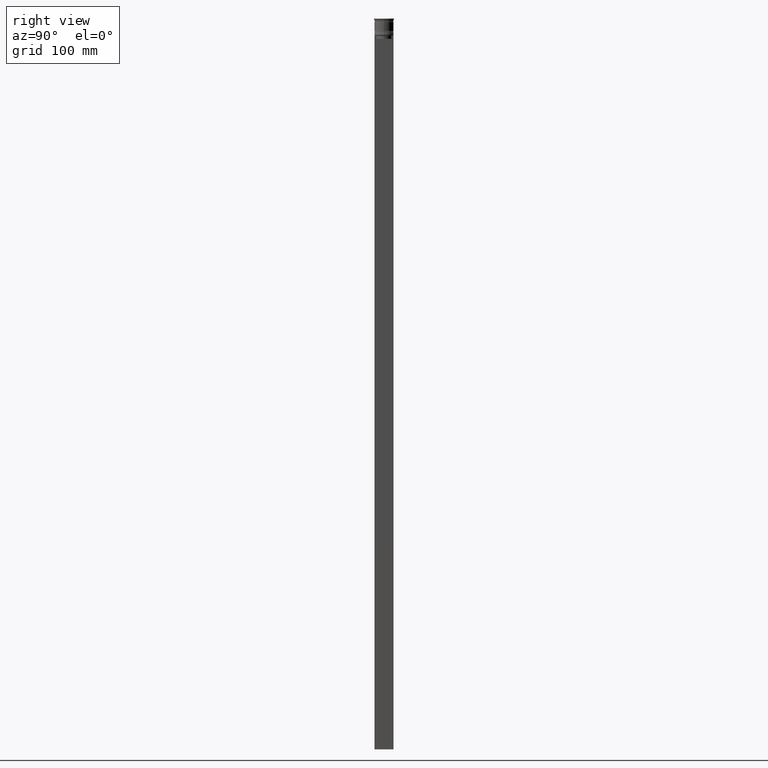
[diagram: clean part render]
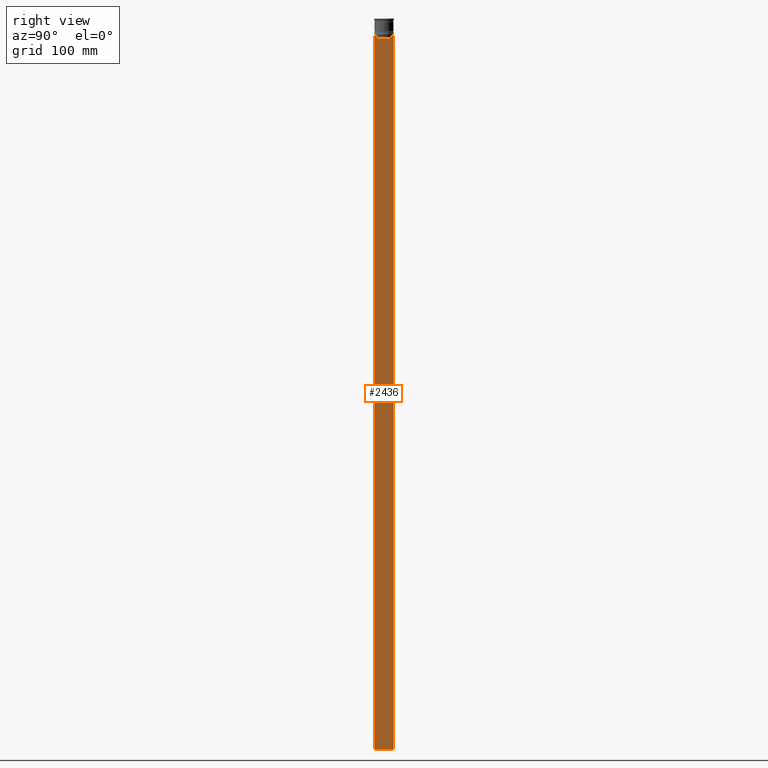
[diagram: same view with one face highlighted and labeled with its STEP entity id]
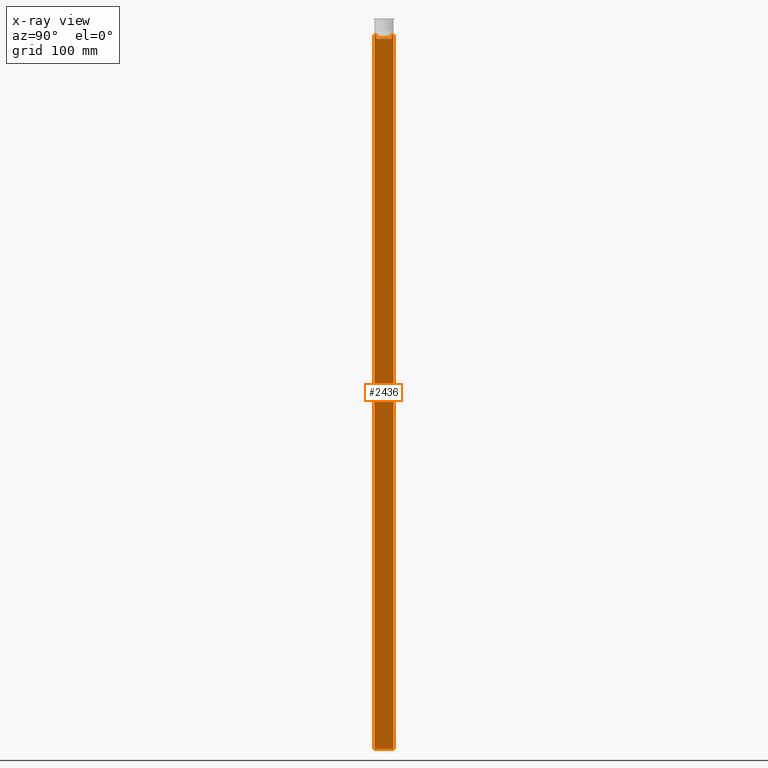
[diagram: x-ray of the same camera — body ghosted, the highlighted face saturated]
A machine part, right view. The second image highlights one B-rep face of the part: STEP entity #2436.
The next image is the same camera in x-ray: the body ghosted, the highlighted face saturated — about 0% of this face is hidden behind the body in this view.
In plain terms, the highlighted planar face has unit normal (-1, 0, 0).
Its self-contained STEP definition (entity closure, byte-faithful):
#29 = VERTEX_POINT ( 'NONE', #1658 ) ;
#39 = CARTESIAN_POINT ( 'NONE',  ( 0.5000000000000001110, -6.881860213634098500, -14.00000000000000178 ) ) ;
#73 = VERTEX_POINT ( 'NONE', #108 ) ;
#80 = DIRECTION ( 'NONE',  ( 0.000000000000000000, -1.000000000000000000, 0.000000000000000000 ) ) ;
#95 = EDGE_CURVE ( 'NONE', #1430, #1827, #286, .T. ) ;
#108 = CARTESIAN_POINT ( 'NONE',  ( 0.5000000000000001110, -6.380438856379708312, -17.00000000000000000 ) ) ;
#113 = EDGE_CURVE ( 'NONE', #1595, #1979, #2234, .T. ) ;
#142 = CARTESIAN_POINT ( 'NONE',  ( 0.5000000000000001110, -8.000000000000003553, 2.031219541881394530 ) ) ;
#143 = LINE ( 'NONE', #940, #396 ) ;
#148 = CARTESIAN_POINT ( 'NONE',  ( 0.5000000000000001110, 7.999999999999996447, -614.0000000000000000 ) ) ;
#155 = CARTESIAN_POINT ( 'NONE',  ( 0.5000000000000001110, -8.000000000000003553, 2.031219541881394530 ) ) ;
#178 = LINE ( 'NONE', #1498, #2213 ) ;
#182 = DIRECTION ( 'NONE',  ( -0.000000000000000000, -0.000000000000000000, 1.000000000000000000 ) ) ;
#230 = ORIENTED_EDGE ( 'NONE', *, *, #95, .T. ) ;
#258 = CARTESIAN_POINT ( 'NONE',  ( 0.5000000000000001110, -6.714736947305993908, -14.16668390685738821 ) ) ;
#286 = LINE ( 'NONE', #877, #2260 ) ;
#305 = CARTESIAN_POINT ( 'NONE',  ( 0.5000000000000001110, 6.399999999999999467, -17.00000000000000000 ) ) ;
#339 = CARTESIAN_POINT ( 'NONE',  ( 0.5000000000000001110, -6.380438856379708312, 0.000000000000000000 ) ) ;
#348 = CARTESIAN_POINT ( 'NONE',  ( 0.5000000000000001110, -8.000000000000003553, -14.00000000000000178 ) ) ;
#364 = CARTESIAN_POINT ( 'NONE',  ( 0.5000000000000001110, 6.881860213634098500, -14.00000000000000178 ) ) ;
#375 = DIRECTION ( 'NONE',  ( 0.000000000000000000, -1.000000000000000000, 0.000000000000000000 ) ) ;
#376 = CARTESIAN_POINT ( 'NONE',  ( 0.5000000000000001110, 6.714736947114692711, -14.16668390704818847 ) ) ;
#385 = ORIENTED_EDGE ( 'NONE', *, *, #1637, .T. ) ;
#396 = VECTOR ( 'NONE', #1489, 1000.000000000000000 ) ;
#406 = VECTOR ( 'NONE', #375, 1000.000000000000000 ) ;
#511 = ORIENTED_EDGE ( 'NONE', *, *, #776, .T. ) ;
#516 = ORIENTED_EDGE ( 'NONE', *, *, #1324, .T. ) ;
#534 = EDGE_CURVE ( 'NONE', #2218, #29, #1731, .T. ) ;
#571 = DIRECTION ( 'NONE',  ( 0.000000000000000000, 0.000000000000000000, -1.000000000000000000 ) ) ;
#585 = EDGE_CURVE ( 'NONE', #1613, #1224, #1335, .T. ) ;
#592 = LINE ( 'NONE', #1556, #611 ) ;
#611 = VECTOR ( 'NONE', #1352, 1000.000000000000000 ) ;
#646 = CARTESIAN_POINT ( 'NONE',  ( 0.5000000000000001110, 7.999999999999996447, -14.00000000000000178 ) ) ;
#679 = CARTESIAN_POINT ( 'NONE',  ( 0.5000000000000001110, 6.380438856379708312, -17.00000000000000000 ) ) ;
#776 = EDGE_CURVE ( 'NONE', #2142, #1211, #178, .T. ) ;
#867 = VECTOR ( 'NONE', #1062, 1000.000000000000000 ) ;
#877 = CARTESIAN_POINT ( 'NONE',  ( 0.5000000000000001110, -8.000000000000003553, -14.00000000000000178 ) ) ;
#881 = ORIENTED_EDGE ( 'NONE', *, *, #1951, .T. ) ;
#908 = DIRECTION ( 'NONE',  ( 0.000000000000000000, -1.000000000000000000, 0.000000000000000000 ) ) ;
#912 = CARTESIAN_POINT ( 'NONE',  ( 0.5000000000000001110, 6.547597841304911626, -14.33335192459222718 ) ) ;
#933 = VECTOR ( 'NONE', #908, 1000.000000000000000 ) ;
#940 = CARTESIAN_POINT ( 'NONE',  ( 0.5000000000000001110, -8.000000000000003553, -614.0000000000000000 ) ) ;
#974 = VECTOR ( 'NONE', #1047, 1000.000000000000000 ) ;
#1047 = DIRECTION ( 'NONE',  ( 0.000000000000000000, 0.000000000000000000, -1.000000000000000000 ) ) ;
#1062 = DIRECTION ( 'NONE',  ( 0.000000000000000000, -1.000000000000000000, 0.000000000000000000 ) ) ;
#1074 = EDGE_CURVE ( 'NONE', #1827, #2218, #592, .T. ) ;
#1103 = DIRECTION ( 'NONE',  ( 0.000000000000000000, 0.000000000000000000, -1.000000000000000000 ) ) ;
#1127 = CARTESIAN_POINT ( 'NONE',  ( 0.5000000000000001110, -8.000000000000003553, -14.00000000000000178 ) ) ;
#1128 = ORIENTED_EDGE ( 'NONE', *, *, #113, .F. ) ;
#1153 = ORIENTED_EDGE ( 'NONE', *, *, #534, .T. ) ;
#1166 = EDGE_CURVE ( 'NONE', #2032, #1430, #1724, .T. ) ;
#1182 = AXIS2_PLACEMENT_3D ( 'NONE', #155, #2459, #1262 ) ;
#1211 = VERTEX_POINT ( 'NONE', #679 ) ;
#1218 = CARTESIAN_POINT ( 'NONE',  ( 0.5000000000000001110, 7.884161337770806632, -14.00000000000000178 ) ) ;
#1224 = VERTEX_POINT ( 'NONE', #1643 ) ;
#1262 = DIRECTION ( 'NONE',  ( 0.000000000000000000, 0.000000000000000000, 1.000000000000000000 ) ) ;
#1285 = LINE ( 'NONE', #339, #1741 ) ;
#1288 = CARTESIAN_POINT ( 'NONE',  ( 0.5000000000000001110, 7.999999999999996447, 2.031219541881394530 ) ) ;
#1301 = ORIENTED_EDGE ( 'NONE', *, *, #1166, .T. ) ;
#1312 = FACE_OUTER_BOUND ( 'NONE', #1763, .T. ) ;
#1324 = EDGE_CURVE ( 'NONE', #1224, #2142, #1380, .T. ) ;
#1335 = LINE ( 'NONE', #348, #406 ) ;
#1343 = EDGE_CURVE ( 'NONE', #73, #2032, #1285, .T. ) ;
#1352 = DIRECTION ( 'NONE',  ( 0.000000000000000000, -1.000000000000000000, 0.000000000000000000 ) ) ;
#1380 = B_SPLINE_CURVE_WITH_KNOTS ( 'NONE', 3,
 ( #364, #376, #912, #1693 ),
 .UNSPECIFIED., .F., .F.,
 ( 4, 4 ),
 ( 0.01172465562756038263, 0.01243276816391822651 ),
 .UNSPECIFIED. ) ;
#1430 = VERTEX_POINT ( 'NONE', #39 ) ;
#1471 = CARTESIAN_POINT ( 'NONE',  ( 0.5000000000000001110, -6.380438856379708312, -14.50000000000000000 ) ) ;
#1489 = DIRECTION ( 'NONE',  ( 0.000000000000000000, 1.000000000000000000, 0.000000000000000000 ) ) ;
#1498 = CARTESIAN_POINT ( 'NONE',  ( 0.5000000000000001110, 6.380438856379708312, 0.000000000000000000 ) ) ;
#1545 = CARTESIAN_POINT ( 'NONE',  ( 0.5000000000000001110, -8.000000000000003553, -14.00000000000000178 ) ) ;
#1556 = CARTESIAN_POINT ( 'NONE',  ( 0.5000000000000001110, -8.000000000000003553, -14.00000000000000178 ) ) ;
#1595 = VERTEX_POINT ( 'NONE', #646 ) ;
#1606 = CARTESIAN_POINT ( 'NONE',  ( 0.5000000000000001110, -6.547597841511247019, -14.33335192438652150 ) ) ;
#1613 = VERTEX_POINT ( 'NONE', #1218 ) ;
#1621 = CARTESIAN_POINT ( 'NONE',  ( 0.5000000000000001110, -7.884161337770806632, -14.00000000000000178 ) ) ;
#1631 = LINE ( 'NONE', #305, #867 ) ;
#1637 = EDGE_CURVE ( 'NONE', #1595, #1613, #2266, .T. ) ;
#1643 = CARTESIAN_POINT ( 'NONE',  ( 0.5000000000000001110, 6.881860213634098500, -14.00000000000000178 ) ) ;
#1647 = ORIENTED_EDGE ( 'NONE', *, *, #585, .T. ) ;
#1658 = CARTESIAN_POINT ( 'NONE',  ( 0.5000000000000001110, -8.000000000000003553, -614.0000000000000000 ) ) ;
#1693 = CARTESIAN_POINT ( 'NONE',  ( 0.5000000000000001110, 6.380438856379708312, -14.50000000000000000 ) ) ;
#1724 = B_SPLINE_CURVE_WITH_KNOTS ( 'NONE', 3,
 ( #1995, #1606, #258, #2183 ),
 .UNSPECIFIED., .F., .F.,
 ( 4, 4 ),
 ( 0.02996184199614751464, 0.03067452609193705923 ),
 .UNSPECIFIED. ) ;
#1731 = LINE ( 'NONE', #142, #1865 ) ;
#1741 = VECTOR ( 'NONE', #182, 1000.000000000000000 ) ;
#1763 = EDGE_LOOP ( 'NONE', ( #1647, #516, #511, #881, #1796, #1301, #230, #2366, #1153, #1898, #1128, #385 ) ) ;
#1796 = ORIENTED_EDGE ( 'NONE', *, *, #1343, .T. ) ;
#1827 = VERTEX_POINT ( 'NONE', #1621 ) ;
#1865 = VECTOR ( 'NONE', #1103, 1000.000000000000000 ) ;
#1898 = ORIENTED_EDGE ( 'NONE', *, *, #2471, .T. ) ;
#1951 = EDGE_CURVE ( 'NONE', #1211, #73, #1631, .T. ) ;
#1979 = VERTEX_POINT ( 'NONE', #148 ) ;
#1995 = CARTESIAN_POINT ( 'NONE',  ( 0.5000000000000001110, -6.380438856379708312, -14.50000000000000000 ) ) ;
#2032 = VERTEX_POINT ( 'NONE', #1471 ) ;
#2058 = PLANE ( 'NONE',  #1182 ) ;
#2116 = CARTESIAN_POINT ( 'NONE',  ( 0.5000000000000001110, 6.380438856379708312, -14.50000000000000000 ) ) ;
#2142 = VERTEX_POINT ( 'NONE', #2116 ) ;
#2183 = CARTESIAN_POINT ( 'NONE',  ( 0.5000000000000001110, -6.881860213634098500, -14.00000000000000178 ) ) ;
#2213 = VECTOR ( 'NONE', #571, 1000.000000000000000 ) ;
#2218 = VERTEX_POINT ( 'NONE', #1545 ) ;
#2234 = LINE ( 'NONE', #1288, #974 ) ;
#2260 = VECTOR ( 'NONE', #80, 1000.000000000000000 ) ;
#2266 = LINE ( 'NONE', #1127, #933 ) ;
#2366 = ORIENTED_EDGE ( 'NONE', *, *, #1074, .T. ) ;
#2436 = ADVANCED_FACE ( 'NONE', ( #1312 ), #2058, .F. ) ;
#2459 = DIRECTION ( 'NONE',  ( -1.000000000000000000, 0.000000000000000000, 0.000000000000000000 ) ) ;
#2471 = EDGE_CURVE ( 'NONE', #29, #1979, #143, .T. ) ;